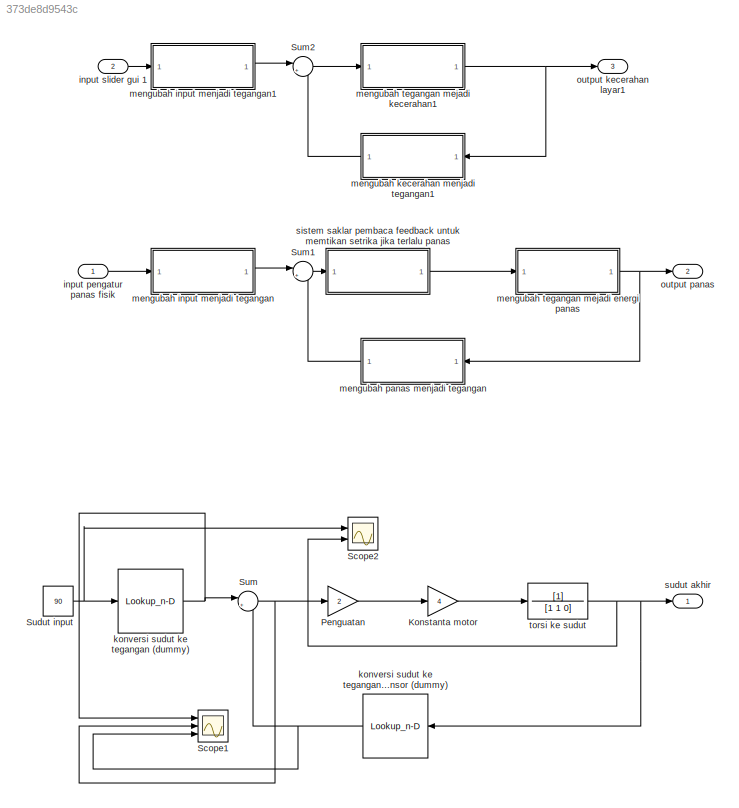
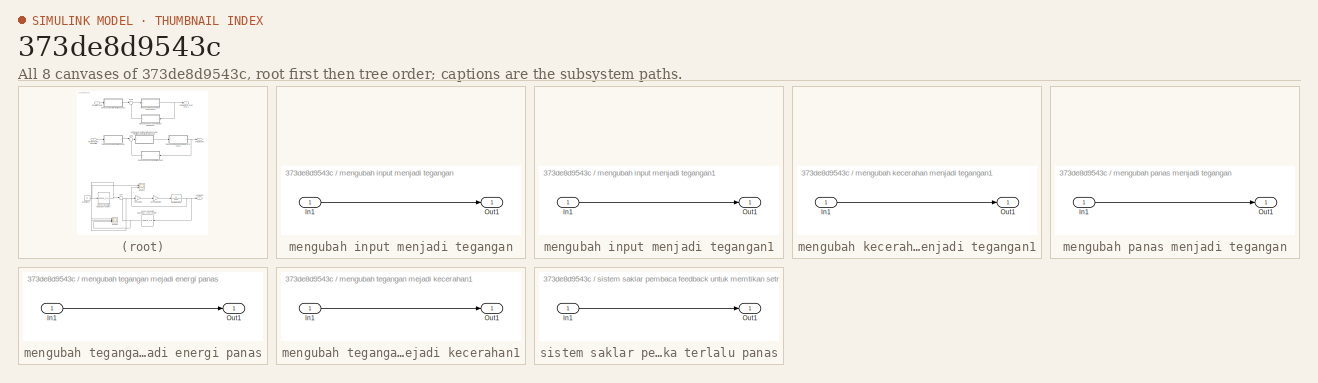
[diagram: thumbnail index - all 8 canvases of the model, root first then tree order]
MODEL slx_373de8d9543c
KIND model
CONFIG AbsTol = auto
CONFIG FixedStep = auto
CONFIG MaxStep = auto
CONFIG MinStep = auto
CONFIG RelTol = 1e-3
CONFIG SampleTimeConstraint = Unconstrained
CONFIG Solver = VariableStepAuto
CONFIG SolverMode = Auto
CONFIG SolverName = VariableStepAuto
CONFIG StartTime = 0.0
CONFIG StopTime = 10.0
BLOCK [Gain] Konstanta motor
  Gain = 4
  OutDataTypeStr = Inherit: Inherit via internal rule
  ParamDataTypeStr = Inherit: Inherit via internal rule
  SaturateOnIntegerOverflow = off
BLOCK [Gain] Penguatan
  Gain = 2
  OutDataTypeStr = Inherit: Inherit via internal rule
  ParamDataTypeStr = Inherit: Inherit via internal rule
  SaturateOnIntegerOverflow = off
BLOCK [Scope] Scope1
  NumInputPorts = 3
  Ports = [3]
  ScopeSpecificationString = Simulink.scopes.TimeScopeBlockCfg('CurrentConfiguration', extmgr.ConfigurationSet(extmgr.Configuration('Core','General UI',true),extmgr.Configuration('Core','Source UI',true),extmgr.Configuration('Sources','WiredSimulink',true,'DataLoggingVariableName','ScopeData1'),extmgr.Configuration('Visuals','Time Domain',true,'SerializedDisplays',{struct('MinYLimReal','-0.2579','MaxYLimReal','6.41754','YLabe...<+1500ch>
BLOCK [Scope] Scope2
  NumInputPorts = 2
  Ports = [2]
  ScopeSpecificationString = Simulink.scopes.TimeScopeBlockCfg('CurrentConfiguration', extmgr.ConfigurationSet(extmgr.Configuration('Core','General UI',true),extmgr.Configuration('Core','Source UI',true),extmgr.Configuration('Sources','WiredSimulink',true,'DataLoggingVariableName','ScopeData2'),extmgr.Configuration('Visuals','Time Domain',true,'SerializedDisplays',{struct('MinYLimReal','-11.25','MaxYLimReal','101.25','YLabelR...<+1481ch>
BLOCK [Constant] Sudut input 
  Value = 90
BLOCK [Sum] Sum
  IconShape = round
  InputSameDT = off
  Inputs = |+-
  OutDataTypeStr = Inherit: Inherit via internal rule
  Ports = [2, 1]
  SaturateOnIntegerOverflow = off
BLOCK [Sum] Sum1
  IconShape = round
  InputSameDT = off
  Inputs = |+-
  OutDataTypeStr = Inherit: Inherit via internal rule
  Ports = [2, 1]
  SaturateOnIntegerOverflow = off
BLOCK [Sum] Sum2
  IconShape = round
  InputSameDT = off
  Inputs = |+-
  OutDataTypeStr = Inherit: Inherit via internal rule
  Ports = [2, 1]
  SaturateOnIntegerOverflow = off
BLOCK [Inport] input pengatur panas fisik
  IconDisplay = Port number
BLOCK [Inport] input slider gui 1
  IconDisplay = Port number
  Port = 2
BLOCK [Lookup_n-D] konversi sudut ke tegangan (dummy)
  BreakpointsForDimension1 = [36,72,108,180,216,252,288,324,360,400,480]
  InternalRulePriority = Speed
  NumberOfTableDimensions = 1
  Ports = [1, 1]
  RndMeth = Simplest
  Table = [5,5.5,6,6.6,7,7.5,8,8.5,9,12,15]
BLOCK [Lookup_n-D] konversi sudut ke tegangan pada sensor (dummy)
  BreakpointsForDimension1 = [36,72,108,180,216,252,288,324,360,400,480]
  InternalRulePriority = Speed
  NumberOfTableDimensions = 1
  Ports = [1, 1]
  RndMeth = Simplest
  Table = [5,5.5,6,6.6,7,7.5,8,8.5,9,12,15]
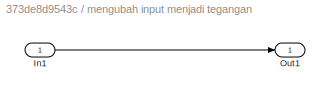
BLOCK [SubSystem] mengubah input menjadi tegangan
  Ports = [1, 1]
  RequestExecContextInheritance = off
  Variant = off
BLOCK [Inport] mengubah input menjadi tegangan/In1
  IconDisplay = Port number
BLOCK [Outport] mengubah input menjadi tegangan/Out1
  IconDisplay = Port number
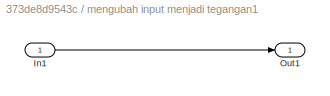
BLOCK [SubSystem] mengubah input menjadi tegangan1
  Ports = [1, 1]
  RequestExecContextInheritance = off
  Variant = off
BLOCK [Inport] mengubah input menjadi tegangan1/In1
  IconDisplay = Port number
BLOCK [Outport] mengubah input menjadi tegangan1/Out1
  IconDisplay = Port number
BLOCK [SubSystem] mengubah kecerahan menjadi tegangan1
  Ports = [1, 1]
  RequestExecContextInheritance = off
  Variant = off
BLOCK [Inport] mengubah kecerahan menjadi tegangan1/In1
  IconDisplay = Port number
BLOCK [Outport] mengubah kecerahan menjadi tegangan1/Out1
  IconDisplay = Port number
BLOCK [SubSystem] mengubah panas menjadi tegangan
  Ports = [1, 1]
  RequestExecContextInheritance = off
  Variant = off
BLOCK [Inport] mengubah panas menjadi tegangan/In1
  IconDisplay = Port number
BLOCK [Outport] mengubah panas menjadi tegangan/Out1
  IconDisplay = Port number
BLOCK [SubSystem] mengubah tegangan mejadi energi panas
  Ports = [1, 1]
  RequestExecContextInheritance = off
  Variant = off
BLOCK [Inport] mengubah tegangan mejadi energi panas/In1
  IconDisplay = Port number
BLOCK [Outport] mengubah tegangan mejadi energi panas/Out1
  IconDisplay = Port number
BLOCK [SubSystem] mengubah tegangan mejadi kecerahan1
  Ports = [1, 1]
  RequestExecContextInheritance = off
  Variant = off
BLOCK [Inport] mengubah tegangan mejadi kecerahan1/In1
  IconDisplay = Port number
BLOCK [Outport] mengubah tegangan mejadi kecerahan1/Out1
  IconDisplay = Port number
BLOCK [Outport] output kecerahan layar1
  IconDisplay = Port number
  Port = 3
BLOCK [Outport] output panas
  IconDisplay = Port number
  Port = 2
BLOCK [SubSystem] sistem saklar pembaca feedback untuk memtikan setrika jika terlalu panas
  Ports = [1, 1]
  RequestExecContextInheritance = off
  Variant = off
BLOCK [Inport] sistem saklar pembaca feedback untuk memtikan setrika jika terlalu panas/In1
  IconDisplay = Port number
BLOCK [Outport] sistem saklar pembaca feedback untuk memtikan setrika jika terlalu panas/Out1
  IconDisplay = Port number
BLOCK [Outport] sudut akhir
  IconDisplay = Port number
BLOCK [TransferFcn] torsi ke sudut
  Denominator = [1 1 0]
LINE Konstanta motor:1 -> torsi ke sudut:1
LINE Penguatan:1 -> Konstanta motor:1
NET Sudut input :1 -> Scope2:1, konversi sudut ke tegangan (dummy):1
LINE Sum1:1 -> sistem saklar pembaca feedback untuk memtikan setrika jika terlalu panas:1
LINE Sum2:1 -> mengubah tegangan mejadi kecerahan1:1
NET Sum:1 -> Penguatan:1, Scope1:2
LINE input pengatur panas fisik:1 -> mengubah input menjadi tegangan:1
LINE input slider gui 1:1 -> mengubah input menjadi tegangan1:1
NET konversi sudut ke tegangan (dummy):1 -> Scope1:1, Sum:1
NET konversi sudut ke tegangan pada sensor (dummy):1 -> Scope1:3, Sum:2
LINE mengubah input menjadi tegangan/In1:1 -> mengubah input menjadi tegangan/Out1:1
LINE mengubah input menjadi tegangan1/In1:1 -> mengubah input menjadi tegangan1/Out1:1
LINE mengubah input menjadi tegangan1:1 -> Sum2:1
LINE mengubah input menjadi tegangan:1 -> Sum1:1
LINE mengubah kecerahan menjadi tegangan1/In1:1 -> mengubah kecerahan menjadi tegangan1/Out1:1
LINE mengubah kecerahan menjadi tegangan1:1 -> Sum2:2
LINE mengubah panas menjadi tegangan/In1:1 -> mengubah panas menjadi tegangan/Out1:1
LINE mengubah panas menjadi tegangan:1 -> Sum1:2
LINE mengubah tegangan mejadi energi panas/In1:1 -> mengubah tegangan mejadi energi panas/Out1:1
NET mengubah tegangan mejadi energi panas:1 -> mengubah panas menjadi tegangan:1, output panas:1
LINE mengubah tegangan mejadi kecerahan1/In1:1 -> mengubah tegangan mejadi kecerahan1/Out1:1
NET mengubah tegangan mejadi kecerahan1:1 -> mengubah kecerahan menjadi tegangan1:1, output kecerahan layar1:1
LINE sistem saklar pembaca feedback untuk memtikan setrika jika terlalu panas/In1:1 -> sistem saklar pembaca feedback untuk memtikan setrika jika terlalu panas/Out1:1
LINE sistem saklar pembaca feedback untuk memtikan setrika jika terlalu panas:1 -> mengubah tegangan mejadi energi panas:1
NET torsi ke sudut:1 -> Scope2:2, konversi sudut ke tegangan pada sensor (dummy):1, sudut akhir:1
note: NET lines group one-source signal fan-out (src -> all destinations, sorted); 1:1 wires keep LINE
